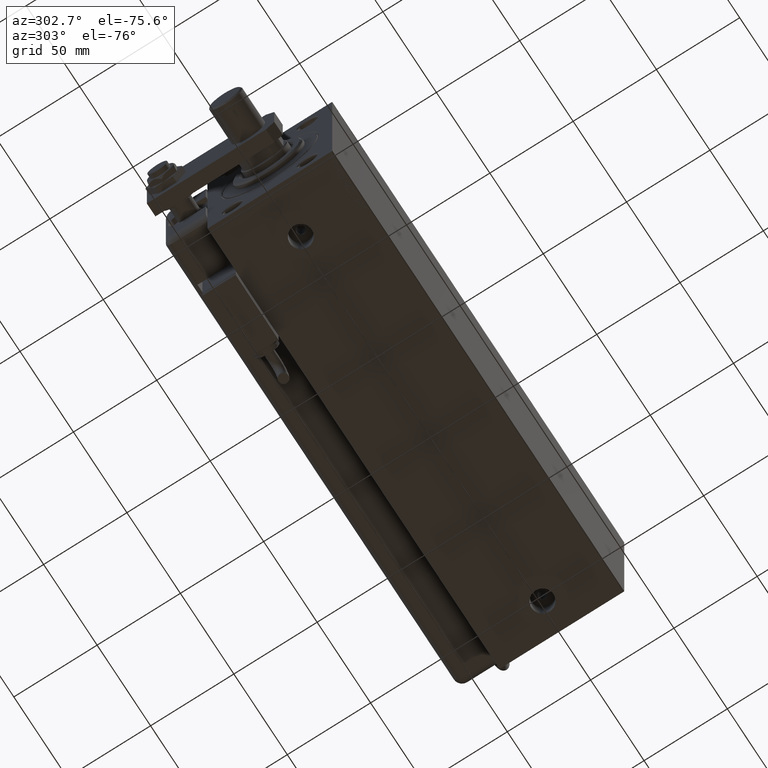
[diagram: clean part render]
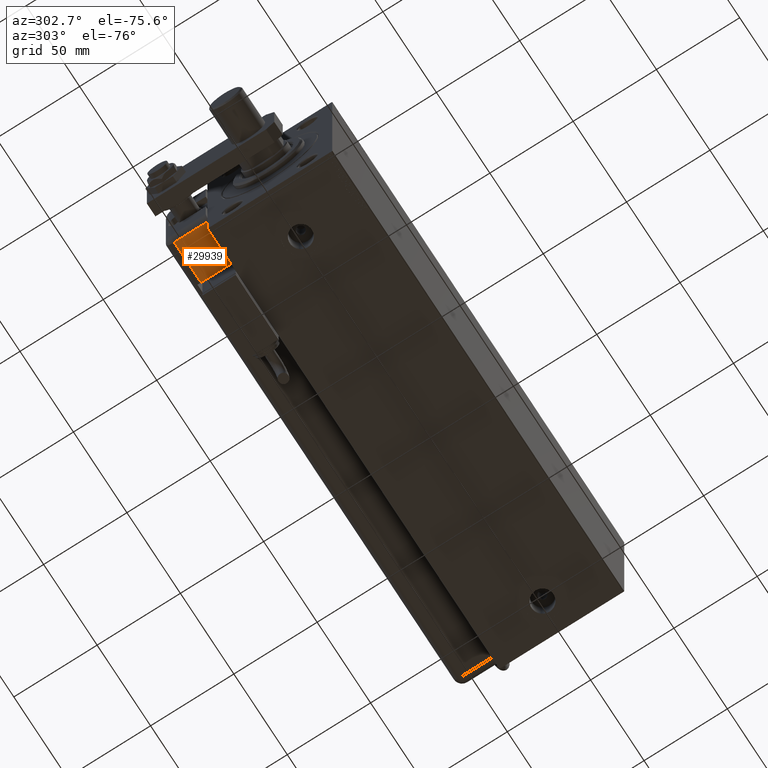
[diagram: same view with one face highlighted and labeled with its STEP entity id]
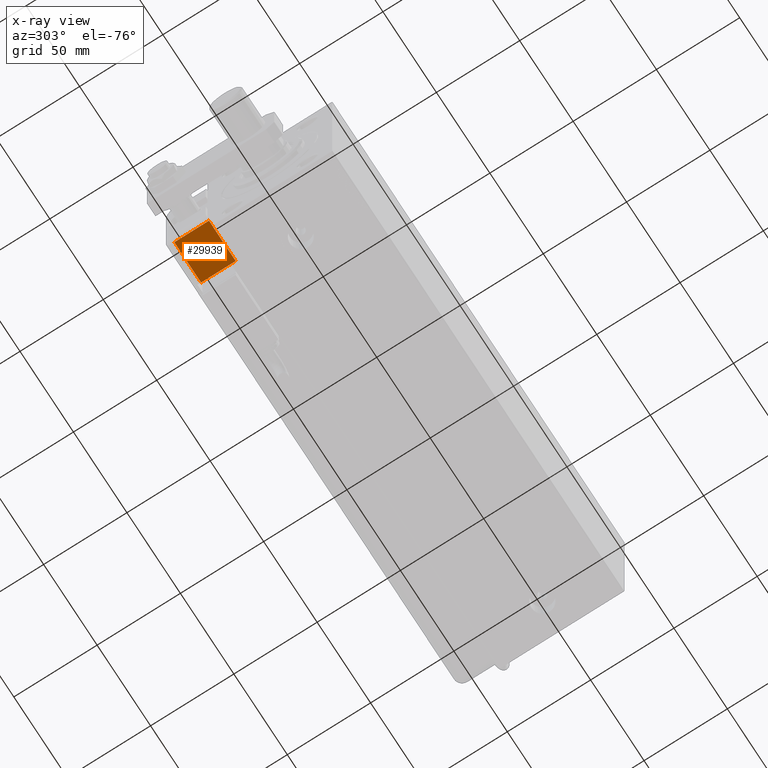
[diagram: x-ray of the same camera — body ghosted, the highlighted face saturated]
A machine part, auxiliary view. The second image highlights one B-rep face of the part: STEP entity #29939.
The next image is the same camera in x-ray: the body ghosted, the highlighted face saturated — about 0% of this face is hidden behind the body in this view.
In plain terms, the highlighted planar face has unit normal (0, 0, 1).
Its self-contained STEP definition (entity closure, byte-faithful):
#219 = EDGE_CURVE ( 'NONE', #54847, #13496, #37372, .T. ) ;
#3967 = DIRECTION ( 'NONE',  ( 1.000000000000000000, 0.000000000000000000, -0.000000000000000000 ) ) ;
#5201 = EDGE_CURVE ( 'NONE', #10695, #16653, #50018, .T. ) ;
#5411 = ORIENTED_EDGE ( 'NONE', *, *, #219, .F. ) ;
#7659 = FACE_OUTER_BOUND ( 'NONE', #12643, .T. ) ;
#8003 = CARTESIAN_POINT ( 'NONE',  ( -28.99999999999999645, 20.79999999999998295, 274.0000000000000000 ) ) ;
#8267 = PLANE ( 'NONE',  #11612 ) ;
#9193 = DIRECTION ( 'NONE',  ( 0.000000000000000000, 0.000000000000000000, -1.000000000000000000 ) ) ;
#10695 = VERTEX_POINT ( 'NONE', #8003 ) ;
#11612 = AXIS2_PLACEMENT_3D ( 'NONE', #55226, #3967, #27003 ) ;
#12643 = EDGE_LOOP ( 'NONE', ( #43755, #5411, #42638, #39536 ) ) ;
#12892 = LINE ( 'NONE', #50653, #39965 ) ;
#13496 = VERTEX_POINT ( 'NONE', #46877 ) ;
#16653 = VERTEX_POINT ( 'NONE', #16768 ) ;
#16768 = CARTESIAN_POINT ( 'NONE',  ( -28.99999999999999645, -9.421223957302265857E-15, 274.0000000000000000 ) ) ;
#17802 = LINE ( 'NONE', #29466, #54691 ) ;
#19863 = DIRECTION ( 'NONE',  ( -0.000000000000000000, 1.000000000000000000, -0.000000000000000000 ) ) ;
#27003 = DIRECTION ( 'NONE',  ( -0.000000000000000000, 0.000000000000000000, -1.000000000000000000 ) ) ;
#29466 = CARTESIAN_POINT ( 'NONE',  ( -28.99999999999999645, -9.421223957302265857E-15, 274.0000000000000000 ) ) ;
#29939 = ADVANCED_FACE ( 'NONE', ( #7659 ), #8267, .F. ) ;
#37372 = LINE ( 'NONE', #52392, #45316 ) ;
#39536 = ORIENTED_EDGE ( 'NONE', *, *, #5201, .F. ) ;
#39965 = VECTOR ( 'NONE', #9193, 1000.000000000000000 ) ;
#40208 = CARTESIAN_POINT ( 'NONE',  ( -28.99999999999999645, 25.79999999999998295, 274.0000000000000000 ) ) ;
#42638 = ORIENTED_EDGE ( 'NONE', *, *, #58635, .F. ) ;
#43755 = ORIENTED_EDGE ( 'NONE', *, *, #58699, .T. ) ;
#44401 = CARTESIAN_POINT ( 'NONE',  ( -28.99999999999999645, -9.421223957302265857E-15, 249.0000000000000284 ) ) ;
#45316 = VECTOR ( 'NONE', #19863, 1000.000000000000000 ) ;
#46352 = DIRECTION ( 'NONE',  ( -0.000000000000000000, -0.000000000000000000, -1.000000000000000000 ) ) ;
#46877 = CARTESIAN_POINT ( 'NONE',  ( -28.99999999999999645, 20.79999999999998295, 249.0000000000000284 ) ) ;
#50018 = LINE ( 'NONE', #40208, #53241 ) ;
#50653 = CARTESIAN_POINT ( 'NONE',  ( -28.99999999999999645, 20.79999999999998295, 274.0000000000000000 ) ) ;
#52392 = CARTESIAN_POINT ( 'NONE',  ( -28.99999999999999645, 22.99999999999998934, 249.0000000000000284 ) ) ;
#53241 = VECTOR ( 'NONE', #58930, 1000.000000000000000 ) ;
#54691 = VECTOR ( 'NONE', #46352, 1000.000000000000000 ) ;
#54847 = VERTEX_POINT ( 'NONE', #44401 ) ;
#55226 = CARTESIAN_POINT ( 'NONE',  ( -28.99999999999999645, 25.79999999999998295, 274.0000000000000000 ) ) ;
#58635 = EDGE_CURVE ( 'NONE', #16653, #54847, #17802, .T. ) ;
#58699 = EDGE_CURVE ( 'NONE', #10695, #13496, #12892, .T. ) ;
#58930 = DIRECTION ( 'NONE',  ( 0.000000000000000000, -1.000000000000000000, 0.000000000000000000 ) ) ;